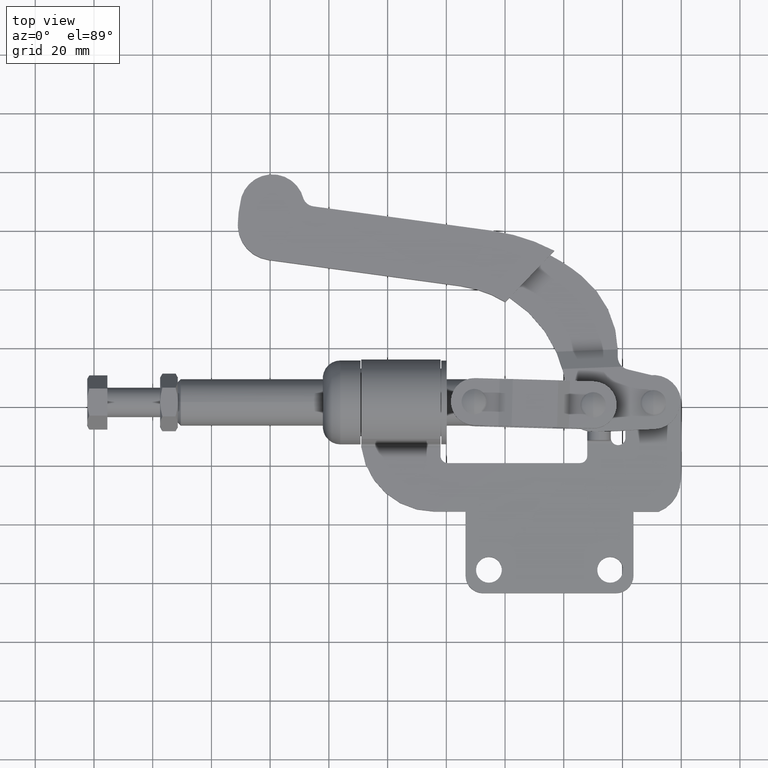
[diagram: clean part render]
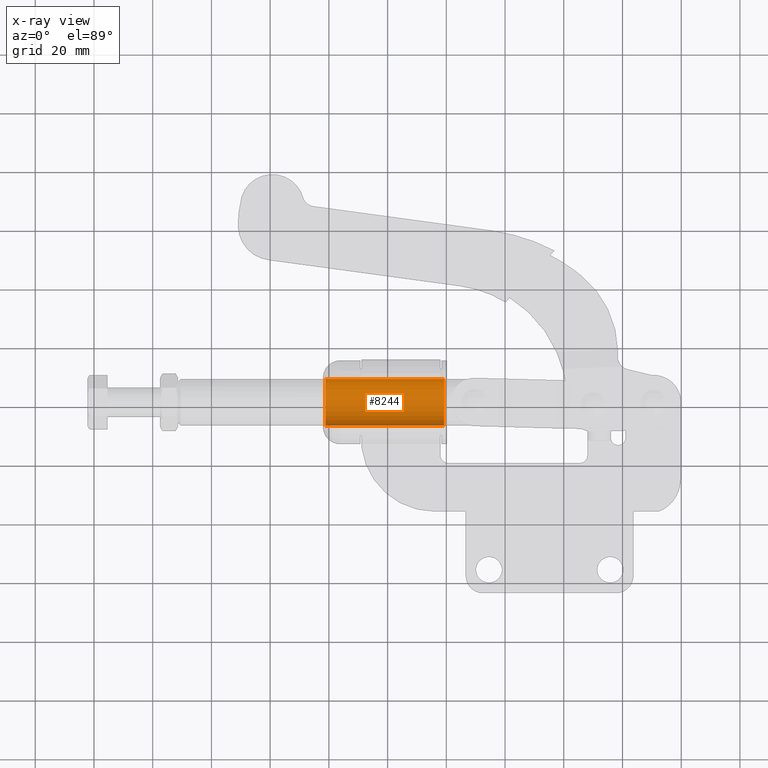
[diagram: x-ray — body ghosted, one internal face saturated and labeled with its STEP entity id]
A machine part, top view, then the same camera in x-ray: the body is ghosted and one INTERNAL B-rep face — a face not visible from any outside direction — is saturated and labeled: STEP entity #8244.
In plain terms, the highlighted cylindrical surface (edge-blend (fillet) strip) has radius 7.925 mm, axis along (-1, 0, -0).
Its self-contained STEP definition (entity closure, byte-faithful):
#143 = ORIENTED_EDGE ( 'NONE', *, *, #6356, .T. ) ;
#350 = VERTEX_POINT ( 'NONE', #1867 ) ;
#1055 = CYLINDRICAL_SURFACE ( 'NONE', #6772, 7.925000000000147300 ) ;
#1318 = DIRECTION ( 'NONE',  ( -1.000000000000000000, 2.573248502651979000E-016, -8.633825298910123800E-017 ) ) ;
#1479 = ORIENTED_EDGE ( 'NONE', *, *, #4733, .F. ) ;
#1595 = CARTESIAN_POINT ( 'NONE',  ( -80.77549821827614100, 33.47499999999986600, -9.310932312975478100E-013 ) ) ;
#1671 = VERTEX_POINT ( 'NONE', #1595 ) ;
#1794 = VECTOR ( 'NONE', #7847, 1000.000000000000000 ) ;
#1867 = CARTESIAN_POINT ( 'NONE',  ( -80.77549821827614100, 49.32500000000017300, -9.321194853152134300E-013 ) ) ;
#1894 = VECTOR ( 'NONE', #3927, 1000.000000000000000 ) ;
#2462 = ORIENTED_EDGE ( 'NONE', *, *, #6909, .F. ) ;
#2642 = DIRECTION ( 'NONE',  ( 0.0000000000000000000, -1.000000000000000000, 0.0000000000000000000 ) ) ;
#2684 = CARTESIAN_POINT ( 'NONE',  ( -121.1574758126469500, 33.47499999999988100, 4.819093436664623700E-013 ) ) ;
#2740 = EDGE_CURVE ( 'NONE', #8219, #5703, #6316, .T. ) ;
#2850 = AXIS2_PLACEMENT_3D ( 'NONE', #4243, #1318, #6281 ) ;
#3220 = FACE_OUTER_BOUND ( 'NONE', #6435, .T. ) ;
#3640 = LINE ( 'NONE', #3805, #1794 ) ;
#3805 = CARTESIAN_POINT ( 'NONE',  ( -108.9655025418542500, 49.32500000000017300, 4.839325099274767500E-013 ) ) ;
#3927 = DIRECTION ( 'NONE',  ( -1.000000000000000000, 2.573248502651979000E-016, -8.633825298910123800E-017 ) ) ;
#4243 = CARTESIAN_POINT ( 'NONE',  ( -121.1574758126469500, 41.40000000000002700, 4.819093436664623700E-013 ) ) ;
#4733 = EDGE_CURVE ( 'NONE', #350, #1671, #7492, .T. ) ;
#5562 = AXIS2_PLACEMENT_3D ( 'NONE', #6432, #6623, #8131 ) ;
#5703 = VERTEX_POINT ( 'NONE', #2684 ) ;
#6097 = CARTESIAN_POINT ( 'NONE',  ( -108.9655025418542500, 41.40000000000002700, 4.829619773391524900E-013 ) ) ;
#6261 = ORIENTED_EDGE ( 'NONE', *, *, #2740, .T. ) ;
#6281 = DIRECTION ( 'NONE',  ( 0.0000000000000000000, -1.000000000000000000, 0.0000000000000000000 ) ) ;
#6316 = CIRCLE ( 'NONE', #2850, 7.925000000000147300 ) ;
#6356 = EDGE_CURVE ( 'NONE', #350, #8219, #3640, .T. ) ;
#6432 = CARTESIAN_POINT ( 'NONE',  ( -80.77549821827614100, 41.40000000000002000, 4.853958530642053200E-013 ) ) ;
#6435 = EDGE_LOOP ( 'NONE', ( #1479, #143, #6261, #2462 ) ) ;
#6623 = DIRECTION ( 'NONE',  ( -1.000000000000000000, 2.573248502651979000E-016, -8.633825298910123800E-017 ) ) ;
#6770 = DIRECTION ( 'NONE',  ( -1.000000000000000000, 2.573248502651979000E-016, -8.633825298910123800E-017 ) ) ;
#6772 = AXIS2_PLACEMENT_3D ( 'NONE', #6097, #6770, #2642 ) ;
#6909 = EDGE_CURVE ( 'NONE', #1671, #5703, #7335, .T. ) ;
#7335 = LINE ( 'NONE', #8655, #1894 ) ;
#7492 = CIRCLE ( 'NONE', #5562, 7.925000000000154400 ) ;
#7847 = DIRECTION ( 'NONE',  ( -1.000000000000000000, 2.573248502651979000E-016, -8.633825298910123800E-017 ) ) ;
#8131 = DIRECTION ( 'NONE',  ( 0.0000000000000000000, -1.000000000000000000, 0.0000000000000000000 ) ) ;
#8219 = VERTEX_POINT ( 'NONE', #8742 ) ;
#8244 = ADVANCED_FACE ( 'NONE', ( #3220 ), #1055, .F. ) ;
#8655 = CARTESIAN_POINT ( 'NONE',  ( -108.9655025418542500, 33.47499999999988100, 4.829619773391524900E-013 ) ) ;
#8742 = CARTESIAN_POINT ( 'NONE',  ( -121.1574758126469500, 49.32500000000017300, -9.310945767722847900E-013 ) ) ;